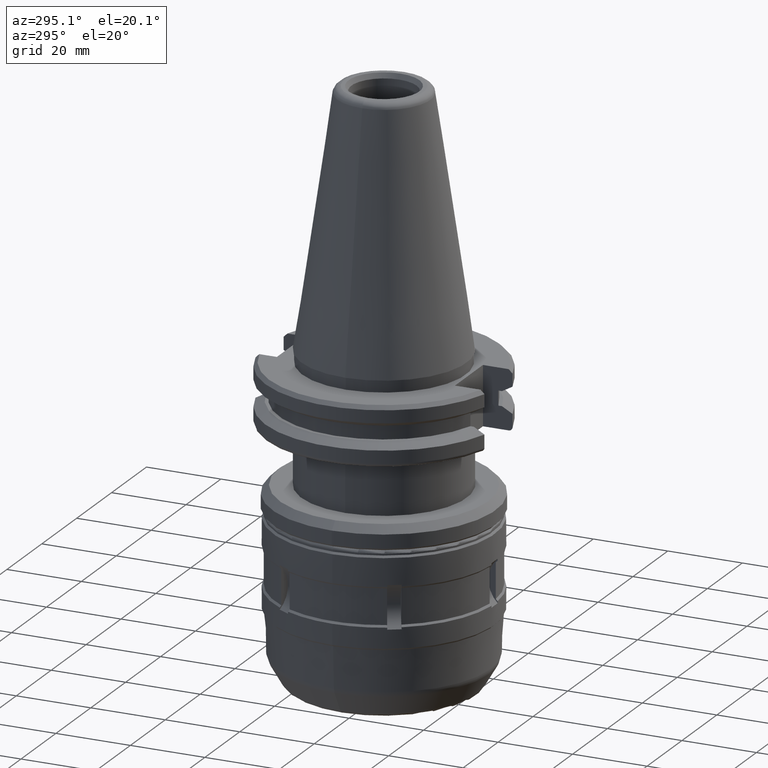
[diagram: clean part render]
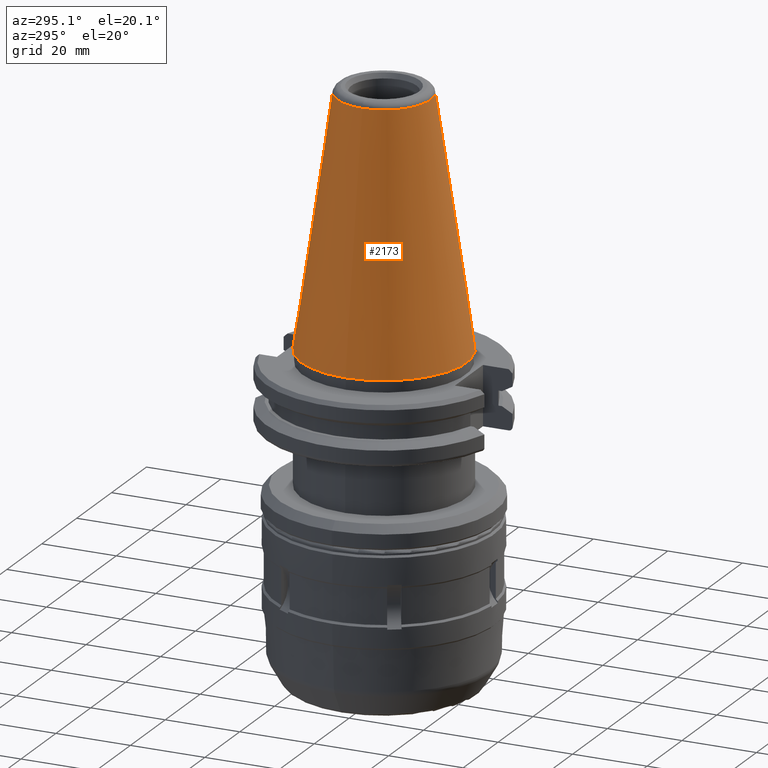
[diagram: same view with one face highlighted and labeled with its STEP entity id]
A machine part, auxiliary view. The second image highlights one B-rep face of the part: STEP entity #2173.
In plain terms, the highlighted conical surface has half-angle 8.297 deg.
Its self-contained STEP definition (entity closure, byte-faithful):
#157 = DIRECTION ( 'NONE',  ( -0.000000000000000000, -0.000000000000000000, -1.000000000000000000 ) ) ;
#167 = CARTESIAN_POINT ( 'NONE',  ( -12.52106618865075660, 1.483994170672545651E-15, 66.53861223283045945 ) ) ;
#613 = DIRECTION ( 'NONE',  ( -0.000000000000000000, -0.000000000000000000, -1.000000000000000000 ) ) ;
#1196 = CARTESIAN_POINT ( 'NONE',  ( -22.22499999999999432, 1.483994170672545651E-15, 9.999999997511999084E-05 ) ) ;
#1263 = VERTEX_POINT ( 'NONE', #167 ) ;
#1363 = AXIS2_PLACEMENT_3D ( 'NONE', #3418, #157, #3764 ) ;
#1392 = CARTESIAN_POINT ( 'NONE',  ( 0.000000000000000000, 1.483994170672545651E-15, 9.999999997511999084E-05 ) ) ;
#2050 = DIRECTION ( 'NONE',  ( -1.000000000000000000, 0.000000000000000000, 0.000000000000000000 ) ) ;
#2173 = ADVANCED_FACE ( 'NONE', ( #3535, #3890 ), #3293, .T. ) ;
#2539 = EDGE_CURVE ( 'NONE', #2570, #2570, #4347, .T. ) ;
#2570 = VERTEX_POINT ( 'NONE', #1196 ) ;
#2728 = CARTESIAN_POINT ( 'NONE',  ( 0.000000000000000000, 1.483994170672545651E-15, 9.999999997511999084E-05 ) ) ;
#2821 = DIRECTION ( 'NONE',  ( -0.000000000000000000, -0.000000000000000000, -1.000000000000000000 ) ) ;
#3293 = CONICAL_SURFACE ( 'NONE', #4407, 22.22499999999999432, 0.1448183960425342143 ) ;
#3418 = CARTESIAN_POINT ( 'NONE',  ( 0.000000000000000000, 1.483994170672545651E-15, 66.53861223283045945 ) ) ;
#3535 = FACE_BOUND ( 'NONE', #4217, .T. ) ;
#3607 = ORIENTED_EDGE ( 'NONE', *, *, #3666, .T. ) ;
#3666 = EDGE_CURVE ( 'NONE', #1263, #1263, #4282, .T. ) ;
#3723 = AXIS2_PLACEMENT_3D ( 'NONE', #2728, #613, #2050 ) ;
#3764 = DIRECTION ( 'NONE',  ( -1.000000000000000000, 0.000000000000000000, 0.000000000000000000 ) ) ;
#3890 = FACE_OUTER_BOUND ( 'NONE', #4045, .T. ) ;
#4045 = EDGE_LOOP ( 'NONE', ( #4629 ) ) ;
#4217 = EDGE_LOOP ( 'NONE', ( #3607 ) ) ;
#4244 = DIRECTION ( 'NONE',  ( -1.000000000000000000, 0.000000000000000000, 0.000000000000000000 ) ) ;
#4282 = CIRCLE ( 'NONE', #1363, 12.52106618865075660 ) ;
#4347 = CIRCLE ( 'NONE', #3723, 22.22499999999999432 ) ;
#4407 = AXIS2_PLACEMENT_3D ( 'NONE', #1392, #2821, #4244 ) ;
#4629 = ORIENTED_EDGE ( 'NONE', *, *, #2539, .F. ) ;